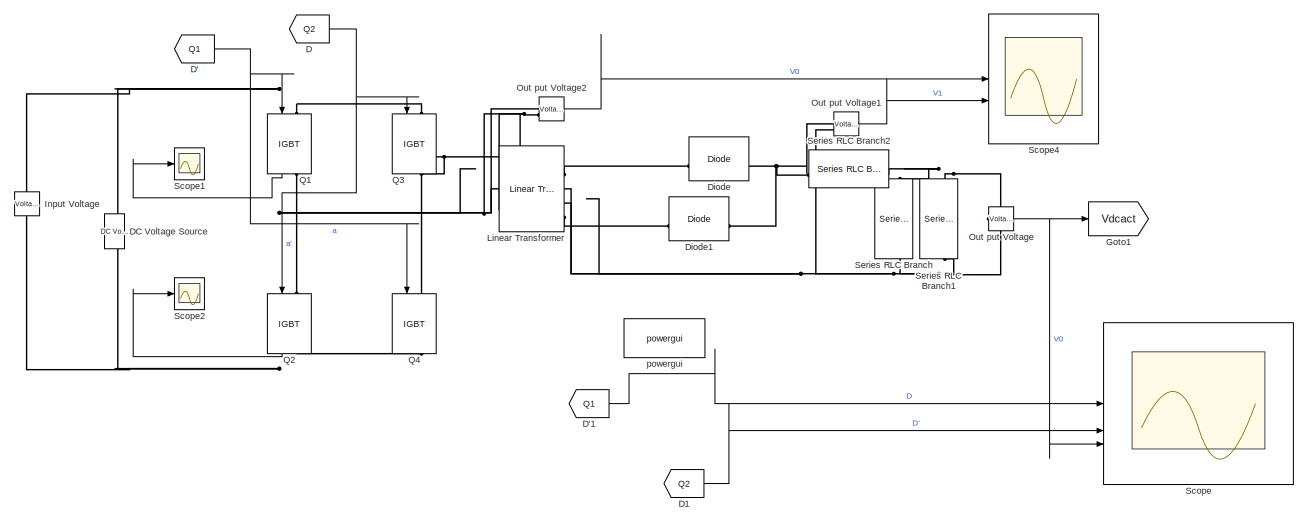
[diagram: root canvas - part 1/2, most of the canvas]
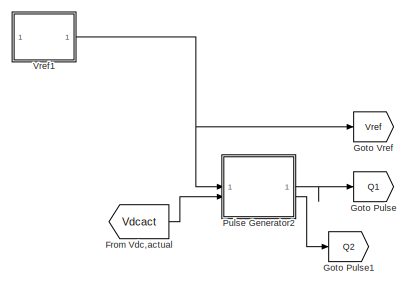
[diagram: root canvas - part 2/2, bottom left region]
MODEL slx_d2c84a6b762f
KIND model
CONFIG AbsTol = auto
CONFIG EnableMultiTasking = off
CONFIG FixedStep = auto
CONFIG MaxStep = auto
CONFIG MinStep = auto
CONFIG RelTol = 1e-3
CONFIG SampleTimeConstraint = Unconstrained
CONFIG SolverName = VariableStepAuto
CONFIG StartTime = 0.0
CONFIG StopTime = 10
BLOCK [From] D
  GotoTag = Q2
BLOCK [From] D'
  GotoTag = Q1
BLOCK [From] D'1
  GotoTag = Q1
BLOCK [From] D1
  GotoTag = Q2
BLOCK [Reference] DC Voltage Source  REF=spsDCVoltageSourceLib/DC Voltage Source
  LibrarySourceBlock = sps_lib/Sources/DC Voltage Source
  SourceBlock = spsDCVoltageSourceLib/DC Voltage Source
  SourceType = DC Voltage Source
BLOCK [Reference] Diode  REF=spsDiodeLib/Diode
  LibrarySourceBlock = sps_lib/Power Electronics/Diode
  SourceBlock = spsDiodeLib/Diode
  SourceType = Diode
BLOCK [Reference] Diode1  REF=spsDiodeLib/Diode
  LibrarySourceBlock = sps_lib/Power Electronics/Diode
  SourceBlock = spsDiodeLib/Diode
  SourceType = Diode
BLOCK [From] From Vdc,actual
  GotoTag = Vdcact
BLOCK [Goto] Goto Pulse
  GotoTag = Q1
BLOCK [Goto] Goto Pulse1
  GotoTag = Q2
BLOCK [Goto] Goto Vref
  GotoTag = Vref
BLOCK [Goto] Goto1
  GotoTag = Vdcact
BLOCK [Reference] Input Voltage  REF=spsVoltageMeasurementLib/Voltage Measurement
  LibrarySourceBlock = sps_lib/Sensors and Measurements/Voltage Measurement
  SourceBlock = spsVoltageMeasurementLib/Voltage Measurement
  SourceType = Voltage Measurement
  UserDataPersistent = on
BLOCK [Reference] Linear Transformer  REF=spsLinearTransformerLib/Linear Transformer
  LibrarySourceBlock = sps_lib/Power Grid Elements/Linear Transformer
  SourceBlock = spsLinearTransformerLib/Linear Transformer
  SourceType = Linear Transformer
BLOCK [Reference] Out put Voltage  REF=spsVoltageMeasurementLib/Voltage Measurement
  LibrarySourceBlock = sps_lib/Sensors and Measurements/Voltage Measurement
  SourceBlock = spsVoltageMeasurementLib/Voltage Measurement
  SourceType = Voltage Measurement
  UserDataPersistent = on
BLOCK [Reference] Out put Voltage1  REF=spsVoltageMeasurementLib/Voltage Measurement
  LibrarySourceBlock = sps_lib/Sensors and Measurements/Voltage Measurement
  SourceBlock = spsVoltageMeasurementLib/Voltage Measurement
  SourceType = Voltage Measurement
  UserDataPersistent = on
BLOCK [Reference] Out put Voltage2  REF=spsVoltageMeasurementLib/Voltage Measurement
  LibrarySourceBlock = sps_lib/Sensors and Measurements/Voltage Measurement
  SourceBlock = spsVoltageMeasurementLib/Voltage Measurement
  SourceType = Voltage Measurement
  UserDataPersistent = on
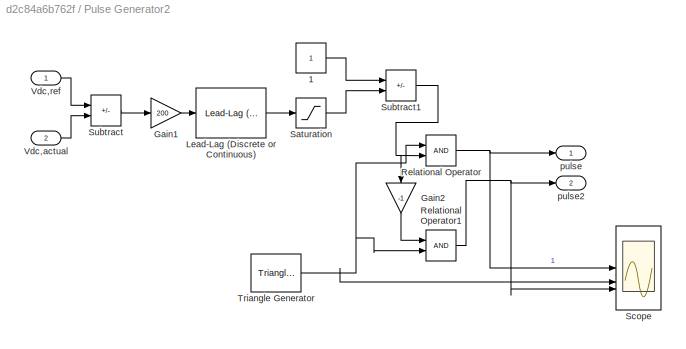
BLOCK [SubSystem] Pulse Generator2
BLOCK [Constant] Pulse Generator2/1
BLOCK [Gain] Pulse Generator2/Gain1
  Gain = 200
BLOCK [Gain] Pulse Generator2/Gain2
  Gain = -1
  NameLocation = left
BLOCK [Reference] Pulse Generator2/Lead-Lag (Discrete or Continuous)  REF=eeGeneralControl/Lead-Lag
(Discrete or Continuous)
  LibrarySourceBlock = ee_sl_lib/General Control/Lead-Lag\n(Discrete or Continuous)
  SourceBlock = eeGeneralControl/Lead-Lag\n(Discrete or Continuous)
  SourceType = Lead-Lag (Discrete or Continuous)
BLOCK [RelationalOperator] Pulse Generator2/Relational Operator
  InputSameDT = off
  OutDataTypeStr = boolean
  RndMeth = Simplest
BLOCK [RelationalOperator] Pulse Generator2/Relational Operator1
  InputSameDT = off
  OutDataTypeStr = boolean
  RndMeth = Simplest
BLOCK [Saturate] Pulse Generator2/Saturation
  LowerLimit = -1
  UpperLimit = 1
BLOCK [Scope] Pulse Generator2/Scope
  Floating = off
  NumInputPorts = 3
  ScopeSpecificationString = Simulink.scopes.TimeScopeBlockCfg('CurrentConfiguration', extmgr.ConfigurationSet(extmgr.Configuration('Core','General UI',true),extmgr.Configuration('Core','Source UI',true),extmgr.Configuration('Sources','WiredSimulink',true,'DataLoggingVariableName','ScopeData1'),extmgr.Configuration('Visuals','Time Domain',true,'SerializedDisplays',{struct('MinYLimReal','-0.08859','MaxYLimReal','1.05566','YLab...<+1518ch>
BLOCK [Sum] Pulse Generator2/Subtract
  IconShape = rectangular
  Inputs = +-
BLOCK [Sum] Pulse Generator2/Subtract1
  IconShape = rectangular
  Inputs = +-
BLOCK [Reference] Pulse Generator2/Triangle Generator  REF=spsTriangleGeneratorLib/Triangle
Generator
  LibrarySourceBlock = sps_lib/Sources/Signal Generator Sources/Triangle\nGenerator
  SourceBlock = spsTriangleGeneratorLib/Triangle\nGenerator
  SourceType = Triangle Generator
BLOCK [Inport] Pulse Generator2/Vdc,actual
  Port = 2
BLOCK [Inport] Pulse Generator2/Vdc,ref
BLOCK [Outport] Pulse Generator2/pulse
BLOCK [Outport] Pulse Generator2/pulse2
  Port = 2
BLOCK [Reference] Q1  REF=spsIGBTLib/IGBT
  LibrarySourceBlock = sps_lib/Power Electronics/IGBT
  NameLocation = left
  SourceBlock = spsIGBTLib/IGBT
  SourceType = IGBT
BLOCK [Reference] Q2  REF=spsIGBTLib/IGBT
  LibrarySourceBlock = sps_lib/Power Electronics/IGBT
  NameLocation = left
  SourceBlock = spsIGBTLib/IGBT
  SourceType = IGBT
BLOCK [Reference] Q3  REF=spsIGBTLib/IGBT
  LibrarySourceBlock = sps_lib/Power Electronics/IGBT
  NameLocation = left
  SourceBlock = spsIGBTLib/IGBT
  SourceType = IGBT
BLOCK [Reference] Q4  REF=spsIGBTLib/IGBT
  LibrarySourceBlock = sps_lib/Power Electronics/IGBT
  NameLocation = left
  SourceBlock = spsIGBTLib/IGBT
  SourceType = IGBT
BLOCK [Scope] Scope
  Floating = off
  NumInputPorts = 3
  ScopeSpecificationString = Simulink.scopes.TimeScopeBlockCfg('CurrentConfiguration', extmgr.ConfigurationSet(extmgr.Configuration('Core','General UI',true),extmgr.Configuration('Core','Source UI',true),extmgr.Configuration('Sources','WiredSimulink',true),extmgr.Configuration('Visuals','Time Domain',true,'SerializedDisplays',{struct('MinYLimReal','-0.125','MaxYLimReal','1.125','YLabelReal','','MinYLimMag','0.00000','MaxYLimM...<+2845ch>
BLOCK [Scope] Scope1
  Floating = off
  NumInputPorts = 1
  ScopeSpecificationString = Simulink.scopes.TimeScopeBlockCfg('CurrentConfiguration', extmgr.ConfigurationSet(extmgr.Configuration('Core','General UI',true),extmgr.Configuration('Core','Source UI',true),extmgr.Configuration('Sources','WiredSimulink',true,'DataLoggingVariableName','ScopeData1'),extmgr.Configuration('Visuals','Time Domain',true,'SerializedDisplays',{struct('MinYLimReal','-25000.33799','MaxYLimReal','225003.041...<+2102ch>
BLOCK [Scope] Scope2
  Floating = off
  NumInputPorts = 1
  ScopeSpecificationString = Simulink.scopes.TimeScopeBlockCfg('CurrentConfiguration', extmgr.ConfigurationSet(extmgr.Configuration('Core','General UI',true),extmgr.Configuration('Core','Source UI',true),extmgr.Configuration('Sources','WiredSimulink',true,'DataLoggingVariableName','ScopeData2'),extmgr.Configuration('Visuals','Time Domain',true),extmgr.Configuration('Tools','Plot Navigation',true),extmgr.Configuration('Tools',...<+40ch>
BLOCK [Scope] Scope4
  Floating = off
  NumInputPorts = 3
  ScopeSpecificationString = Simulink.scopes.TimeScopeBlockCfg('CurrentConfiguration', extmgr.ConfigurationSet(extmgr.Configuration('Core','General UI',true),extmgr.Configuration('Core','Source UI',true),extmgr.Configuration('Sources','WiredSimulink',true,'DataLoggingVariableName','ScopeData4'),extmgr.Configuration('Visuals','Time Domain',true,'SerializedDisplays',{struct('MinYLimReal','-500.00000','MaxYLimReal','500.00000','...<+1461ch>
BLOCK [Reference] Series RLC Branch  REF=spsSeriesRLCBranchLib/Series RLC Branch
  LibrarySourceBlock = sps_lib/Passives/Series RLC Branch
  NameLocation = left
  SourceBlock = spsSeriesRLCBranchLib/Series RLC Branch
  SourceType = Series RLC Branch
BLOCK [Reference] Series RLC Branch1  REF=spsSeriesRLCBranchLib/Series RLC Branch
  LibrarySourceBlock = sps_lib/Passives/Series RLC Branch
  NameLocation = left
  SourceBlock = spsSeriesRLCBranchLib/Series RLC Branch
  SourceType = Series RLC Branch
BLOCK [Reference] Series RLC Branch2  REF=spsSeriesRLCBranchLib/Series RLC Branch
  LibrarySourceBlock = sps_lib/Passives/Series RLC Branch
  NameLocation = top
  SourceBlock = spsSeriesRLCBranchLib/Series RLC Branch
  SourceType = Series RLC Branch
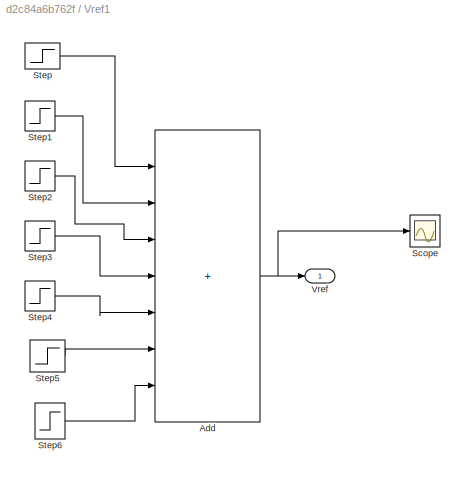
BLOCK [SubSystem] Vref1
BLOCK [Sum] Vref1/Add
  IconShape = rectangular
  Inputs = +++++++
BLOCK [Scope] Vref1/Scope
  Floating = off
  NumInputPorts = 1
  ScopeSpecificationString = Simulink.scopes.TimeScopeBlockCfg('CurrentConfiguration', extmgr.ConfigurationSet(extmgr.Configuration('Core','General UI',true),extmgr.Configuration('Core','Source UI',true),extmgr.Configuration('Sources','WiredSimulink',true,'DataLoggingVariableName','ScopeData1'),extmgr.Configuration('Visuals','Time Domain',true,'SerializedDisplays',{struct('MinYLimReal','35.00000','MaxYLimReal','85.00000','YLa...<+1446ch>
BLOCK [Step] Vref1/Step
  After = 80
  Before = 40
  SampleTime = 0
  Time = 0.1
BLOCK [Step] Vref1/Step1
  After = -50
  SampleTime = 0
  Time = 0.1
BLOCK [Step] Vref1/Step2
  After = 10
  SampleTime = 0
  Time = 0.2
BLOCK [Step] Vref1/Step3
  After = 10
  SampleTime = 0
  Time = 0.4
BLOCK [Step] Vref1/Step4
  After = 10
  SampleTime = 0
  Time = 0.1
BLOCK [Step] Vref1/Step5
  After = 10
  SampleTime = 0
  Time = 0.1
BLOCK [Step] Vref1/Step6
  After = 10
  SampleTime = 0
  Time = 0.1
BLOCK [Outport] Vref1/Vref
BLOCK [Reference] powergui  REF=sps_lib/powergui
  LibrarySourceBlock = sps_lib/powergui
  NameLocation = top
  Priority = 1
  SourceBlock = sps_lib/powergui
  SourceType = PSB option menu block
LINE D'1:1 -> Scope:1
NET D':1 -> Q1:1, Q4:1
LINE D1:1 -> Scope:2
NET D:1 -> Q2:1, Q3:1
LINE From Vdc,actual:1 -> Pulse Generator2:2
LINE Out put Voltage1:1 -> Scope4:2
LINE Out put Voltage2:1 -> Scope4:1
NET Out put Voltage:1 -> Goto1:1, Scope:3
LINE Pulse Generator2/1:1 -> Pulse Generator2/Subtract1:1
LINE Pulse Generator2/Gain1:1 -> Pulse Generator2/Lead-Lag (Discrete or Continuous):1
LINE Pulse Generator2/Gain2:1 -> Pulse Generator2/Relational Operator1:1
LINE Pulse Generator2/Lead-Lag (Discrete or Continuous):1 -> Pulse Generator2/Saturation:1
NET Pulse Generator2/Relational Operator1:1 -> Pulse Generator2/Scope:3, Pulse Generator2/pulse2:1
NET Pulse Generator2/Relational Operator:1 -> Pulse Generator2/Scope:1, Pulse Generator2/pulse:1
LINE Pulse Generator2/Saturation:1 -> Pulse Generator2/Subtract1:2
NET Pulse Generator2/Subtract1:1 -> Pulse Generator2/Gain2:1, Pulse Generator2/Relational Operator:2
LINE Pulse Generator2/Subtract:1 -> Pulse Generator2/Gain1:1
NET Pulse Generator2/Triangle Generator:1 -> Pulse Generator2/Relational Operator1:2, Pulse Generator2/Relational Operator:1, Pulse Generator2/Scope:2
LINE Pulse Generator2/Vdc,actual:1 -> Pulse Generator2/Subtract:2
LINE Pulse Generator2/Vdc,ref:1 -> Pulse Generator2/Subtract:1
LINE Pulse Generator2:1 -> Goto Pulse:1
LINE Pulse Generator2:2 -> Goto Pulse1:1
LINE Q1:1 -> Scope1:1
LINE Q2:1 -> Scope2:1
NET Vref1/Add:1 -> Vref1/Scope:1, Vref1/Vref:1
LINE Vref1/Step1:1 -> Vref1/Add:2
LINE Vref1/Step2:1 -> Vref1/Add:3
LINE Vref1/Step3:1 -> Vref1/Add:4
LINE Vref1/Step4:1 -> Vref1/Add:5
LINE Vref1/Step5:1 -> Vref1/Add:6
LINE Vref1/Step6:1 -> Vref1/Add:7
LINE Vref1/Step:1 -> Vref1/Add:1
NET Vref1:1 -> Goto Vref:1, Pulse Generator2:1
PNET net1: DC Voltage Source:LConn1 -- Input Voltage:LConn2 -- Q2:RConn1 -- Q4:RConn1
PNET net2: DC Voltage Source:RConn1 -- Input Voltage:LConn1 -- Q1:LConn1 -- Q3:LConn1
PLINE Diode1:LConn1 -- Linear Transformer:RConn4
PNET net3: Diode1:RConn1 -- Diode:RConn1 -- Out put Voltage1:LConn1 -- Series RLC Branch2:RConn1
PLINE Diode:LConn1 -- Linear Transformer:RConn1
PNET net4: Linear Transformer:LConn1 -- Out put Voltage2:LConn1 -- Q1:RConn1 -- Q2:LConn1
PNET net5: Linear Transformer:LConn2 -- Out put Voltage2:LConn2 -- Q3:RConn1 -- Q4:LConn1
PNET net6: Linear Transformer:RConn2 -- Linear Transformer:RConn3 -- Out put Voltage1:LConn2 -- Out put Voltage:LConn2 -- Series RLC Branch1:RConn1 -- Series RLC Branch:RConn1
PNET net7: Out put Voltage:LConn1 -- Series RLC Branch1:LConn1 -- Series RLC Branch2:LConn1 -- Series RLC Branch:LConn1
note: NET lines group one-source signal fan-out (src -> all destinations, sorted); 1:1 wires keep LINE; PNET lines group multi-terminal physical nets as a canonical sorted terminal list (undirected conserving connections); 2-terminal nets keep the pairwise PLINE form
